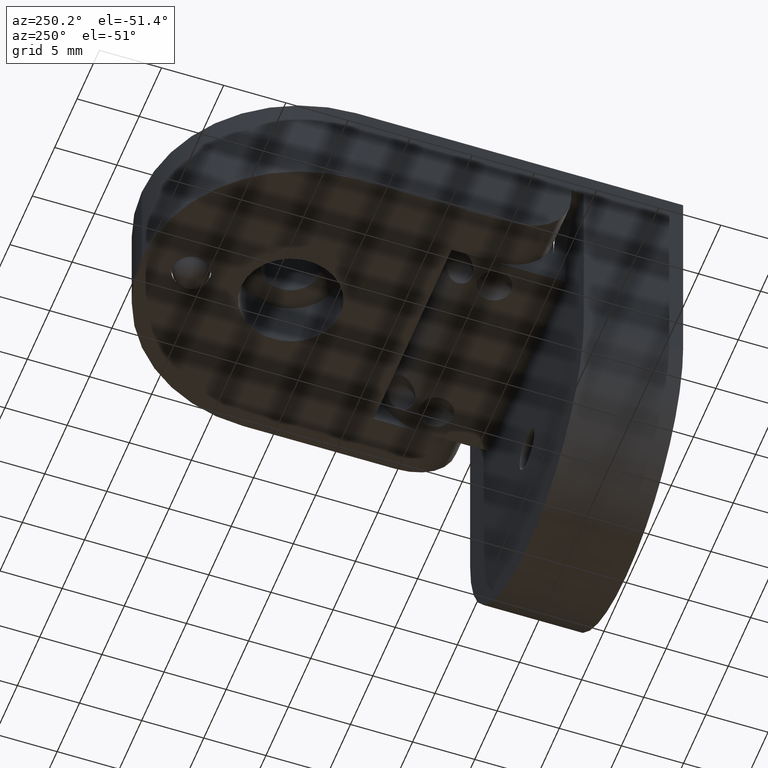
[diagram: clean part render]
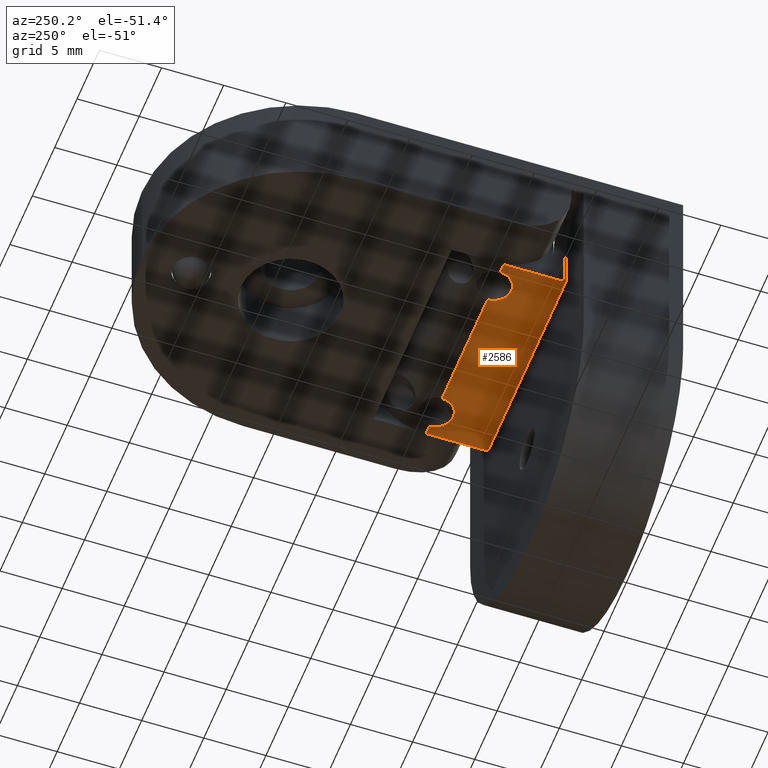
[diagram: same view with one face highlighted and labeled with its STEP entity id]
A machine part, auxiliary view. The second image highlights one B-rep face of the part: STEP entity #2586.
In plain terms, the highlighted planar face has unit normal (0, 0, 1).
Its self-contained STEP definition (entity closure, byte-faithful):
#37 = ORIENTED_EDGE ( 'NONE', *, *, #1361, .F. ) ;
#78 = DIRECTION ( 'NONE',  ( 0.0000000000000000000, 0.0000000000000000000, 1.000000000000000000 ) ) ;
#91 = VERTEX_POINT ( 'NONE', #2200 ) ;
#112 = EDGE_CURVE ( 'NONE', #2371, #2410, #1929, .T. ) ;
#120 = DIRECTION ( 'NONE',  ( -0.0000000000000000000, -0.0000000000000000000, -1.000000000000000000 ) ) ;
#134 = ORIENTED_EDGE ( 'NONE', *, *, #685, .F. ) ;
#145 = CARTESIAN_POINT ( 'NONE',  ( 6.500000000000000000, 13.00000000000000200, -8.000000000000001800 ) ) ;
#147 = DIRECTION ( 'NONE',  ( -0.0000000000000000000, -1.000000000000000000, -0.0000000000000000000 ) ) ;
#160 = CARTESIAN_POINT ( 'NONE',  ( -8.699999999999997500, 17.00000000000000000, -8.000000000000001800 ) ) ;
#163 = CARTESIAN_POINT ( 'NONE',  ( -8.699999999999997500, 13.00000000000000200, -8.000000000000001800 ) ) ;
#180 = LINE ( 'NONE', #853, #748 ) ;
#181 = EDGE_CURVE ( 'NONE', #2291, #1447, #2680, .T. ) ;
#212 = DIRECTION ( 'NONE',  ( -0.0000000000000000000, -0.0000000000000000000, -1.000000000000000000 ) ) ;
#253 = ORIENTED_EDGE ( 'NONE', *, *, #757, .T. ) ;
#264 = LINE ( 'NONE', #163, #1397 ) ;
#279 = VECTOR ( 'NONE', #147, 1000.000000000000000 ) ;
#341 = ORIENTED_EDGE ( 'NONE', *, *, #808, .T. ) ;
#342 = AXIS2_PLACEMENT_3D ( 'NONE', #145, #120, #2050 ) ;
#411 = VERTEX_POINT ( 'NONE', #2085 ) ;
#424 = AXIS2_PLACEMENT_3D ( 'NONE', #1537, #1528, #1516 ) ;
#453 = LINE ( 'NONE', #1594, #1533 ) ;
#534 = LINE ( 'NONE', #848, #2841 ) ;
#600 = DIRECTION ( 'NONE',  ( 1.000000000000000000, 0.0000000000000000000, 0.0000000000000000000 ) ) ;
#608 = EDGE_CURVE ( 'NONE', #1180, #1129, #453, .T. ) ;
#685 = EDGE_CURVE ( 'NONE', #411, #2811, #1985, .T. ) ;
#712 = DIRECTION ( 'NONE',  ( 1.000000000000000000, -0.0000000000000000000, -0.0000000000000000000 ) ) ;
#748 = VECTOR ( 'NONE', #1455, 1000.000000000000000 ) ;
#753 = CIRCLE ( 'NONE', #2158, 1.414213562373093600 ) ;
#757 = EDGE_CURVE ( 'NONE', #1129, #2410, #2358, .T. ) ;
#808 = EDGE_CURVE ( 'NONE', #1705, #1180, #534, .T. ) ;
#848 = CARTESIAN_POINT ( 'NONE',  ( -8.699999999999997500, 13.00000000000000200, -8.000000000000001800 ) ) ;
#853 = CARTESIAN_POINT ( 'NONE',  ( -8.699999999999997500, 13.00000000000000200, -8.000000000000001800 ) ) ;
#984 = ORIENTED_EDGE ( 'NONE', *, *, #608, .T. ) ;
#1044 = CARTESIAN_POINT ( 'NONE',  ( 5.085786437626906000, 13.00000000000000200, -8.000000000000001800 ) ) ;
#1059 = CARTESIAN_POINT ( 'NONE',  ( 7.914213562373092300, 13.00000000000000200, -8.000000000000001800 ) ) ;
#1064 = EDGE_LOOP ( 'NONE', ( #134, #1831, #1662, #37, #341, #984, #253, #1737, #2389, #2459 ) ) ;
#1075 = DIRECTION ( 'NONE',  ( -0.0000000000000000000, -0.0000000000000000000, -1.000000000000000000 ) ) ;
#1080 = DIRECTION ( 'NONE',  ( -1.000000000000000000, -0.0000000000000000000, -0.0000000000000000000 ) ) ;
#1113 = CARTESIAN_POINT ( 'NONE',  ( -6.500000000000000000, 13.00000000000000200, -8.000000000000001800 ) ) ;
#1123 = CARTESIAN_POINT ( 'NONE',  ( -8.699999999999997500, 8.000000000000000000, -8.000000000000001800 ) ) ;
#1129 = VERTEX_POINT ( 'NONE', #1462 ) ;
#1180 = VERTEX_POINT ( 'NONE', #1970 ) ;
#1361 = EDGE_CURVE ( 'NONE', #1705, #2291, #1663, .T. ) ;
#1379 = CARTESIAN_POINT ( 'NONE',  ( -8.699999999999997500, 17.00000000000000000, -8.000000000000001800 ) ) ;
#1397 = VECTOR ( 'NONE', #2183, 1000.000000000000000 ) ;
#1447 = VERTEX_POINT ( 'NONE', #1044 ) ;
#1454 = CARTESIAN_POINT ( 'NONE',  ( -8.699999999999997500, 13.00000000000000200, -8.000000000000001800 ) ) ;
#1455 = DIRECTION ( 'NONE',  ( 1.000000000000000000, -0.0000000000000000000, -0.0000000000000000000 ) ) ;
#1462 = CARTESIAN_POINT ( 'NONE',  ( 8.699999999999997500, 8.000000000000000000, -8.000000000000001800 ) ) ;
#1504 = CARTESIAN_POINT ( 'NONE',  ( -6.500000000000000000, 13.00000000000000200, -8.000000000000001800 ) ) ;
#1516 = DIRECTION ( 'NONE',  ( 1.000000000000000000, 0.0000000000000000000, 0.0000000000000000000 ) ) ;
#1528 = DIRECTION ( 'NONE',  ( -0.0000000000000000000, -0.0000000000000000000, -1.000000000000000000 ) ) ;
#1533 = VECTOR ( 'NONE', #1813, 1000.000000000000000 ) ;
#1536 = EDGE_CURVE ( 'NONE', #411, #1447, #180, .T. ) ;
#1537 = CARTESIAN_POINT ( 'NONE',  ( 6.500000000000000000, 13.00000000000000200, -8.000000000000001800 ) ) ;
#1565 = FACE_OUTER_BOUND ( 'NONE', #1064, .T. ) ;
#1582 = EDGE_CURVE ( 'NONE', #2371, #91, #264, .T. ) ;
#1591 = DIRECTION ( 'NONE',  ( 1.000000000000000000, 0.0000000000000000000, -0.0000000000000000000 ) ) ;
#1594 = CARTESIAN_POINT ( 'NONE',  ( 8.699999999999997500, 17.00000000000000000, -8.000000000000001800 ) ) ;
#1662 = ORIENTED_EDGE ( 'NONE', *, *, #181, .F. ) ;
#1663 = CIRCLE ( 'NONE', #424, 1.414213562373092700 ) ;
#1705 = VERTEX_POINT ( 'NONE', #1059 ) ;
#1722 = EDGE_CURVE ( 'NONE', #2811, #91, #753, .T. ) ;
#1723 = DIRECTION ( 'NONE',  ( 1.000000000000000000, 0.0000000000000000000, 0.0000000000000000000 ) ) ;
#1737 = ORIENTED_EDGE ( 'NONE', *, *, #112, .F. ) ;
#1781 = VECTOR ( 'NONE', #1080, 1000.000000000000000 ) ;
#1812 = PLANE ( 'NONE',  #2525 ) ;
#1813 = DIRECTION ( 'NONE',  ( -0.0000000000000000000, -1.000000000000000000, -0.0000000000000000000 ) ) ;
#1831 = ORIENTED_EDGE ( 'NONE', *, *, #1536, .T. ) ;
#1866 = CARTESIAN_POINT ( 'NONE',  ( 6.500000000000000000, 11.58578643762690800, -8.000000000000001800 ) ) ;
#1929 = LINE ( 'NONE', #160, #279 ) ;
#1960 = CARTESIAN_POINT ( 'NONE',  ( -8.699999999999997500, 8.000000000000000000, -8.000000000000001800 ) ) ;
#1970 = CARTESIAN_POINT ( 'NONE',  ( 8.699999999999997500, 13.00000000000000200, -8.000000000000001800 ) ) ;
#1985 = CIRCLE ( 'NONE', #2628, 1.414213562373093600 ) ;
#2050 = DIRECTION ( 'NONE',  ( 1.000000000000000000, 0.0000000000000000000, 0.0000000000000000000 ) ) ;
#2085 = CARTESIAN_POINT ( 'NONE',  ( -5.085786437626906000, 13.00000000000000200, -8.000000000000001800 ) ) ;
#2114 = CARTESIAN_POINT ( 'NONE',  ( -6.500000000000000000, 11.58578643762690800, -8.000000000000001800 ) ) ;
#2158 = AXIS2_PLACEMENT_3D ( 'NONE', #1504, #212, #1723 ) ;
#2183 = DIRECTION ( 'NONE',  ( 1.000000000000000000, -0.0000000000000000000, -0.0000000000000000000 ) ) ;
#2200 = CARTESIAN_POINT ( 'NONE',  ( -7.914213562373092300, 13.00000000000000200, -8.000000000000001800 ) ) ;
#2291 = VERTEX_POINT ( 'NONE', #1866 ) ;
#2358 = LINE ( 'NONE', #1123, #1781 ) ;
#2371 = VERTEX_POINT ( 'NONE', #1454 ) ;
#2389 = ORIENTED_EDGE ( 'NONE', *, *, #1582, .T. ) ;
#2410 = VERTEX_POINT ( 'NONE', #1960 ) ;
#2459 = ORIENTED_EDGE ( 'NONE', *, *, #1722, .F. ) ;
#2525 = AXIS2_PLACEMENT_3D ( 'NONE', #1379, #78, #1591 ) ;
#2586 = ADVANCED_FACE ( 'NONE', ( #1565 ), #1812, .F. ) ;
#2628 = AXIS2_PLACEMENT_3D ( 'NONE', #1113, #1075, #600 ) ;
#2680 = CIRCLE ( 'NONE', #342, 1.414213562373092700 ) ;
#2811 = VERTEX_POINT ( 'NONE', #2114 ) ;
#2841 = VECTOR ( 'NONE', #712, 1000.000000000000000 ) ;